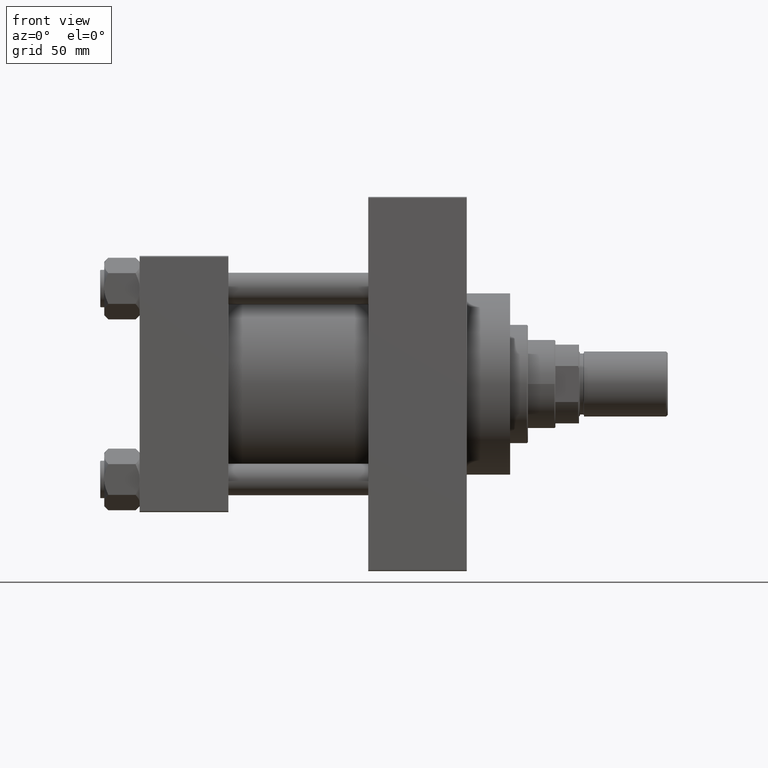
[diagram: clean part render]
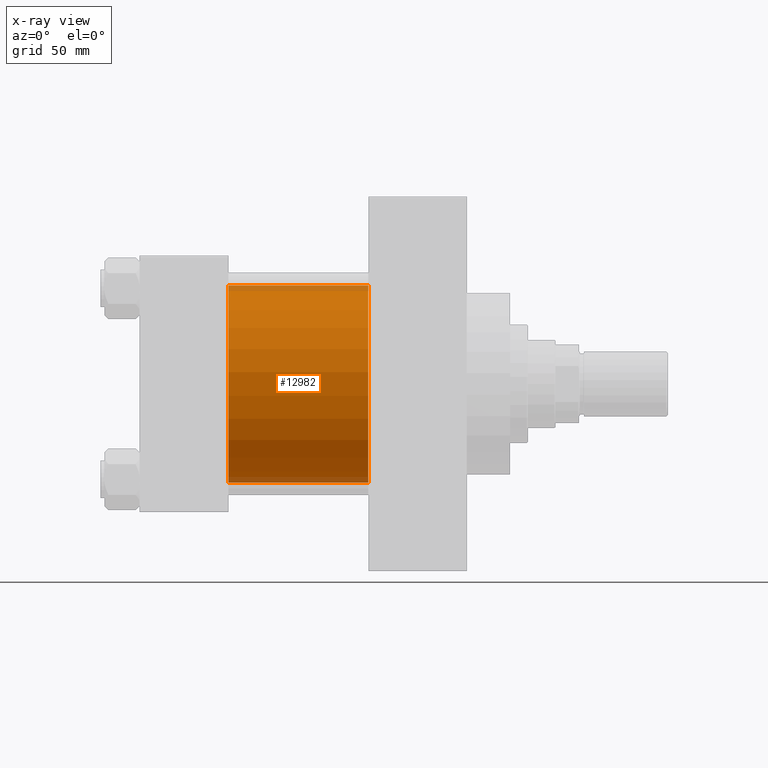
[diagram: x-ray — body ghosted, one internal face saturated and labeled with its STEP entity id]
A machine part, front view, then the same camera in x-ray: the body is ghosted and one INTERNAL B-rep face — a face not visible from any outside direction — is saturated and labeled: STEP entity #12982.
In plain terms, the highlighted cylindrical surface (partial cylindrical patch) has radius 50 mm, axis along (-1, -0, -0).
Its self-contained STEP definition (entity closure, byte-faithful):
#140 = LINE ( 'NONE', #15642, #11512 ) ;
#3476 = LINE ( 'NONE', #18973, #31178 ) ;
#4275 = DIRECTION ( 'NONE',  ( 1.000000000000000000, 0.000000000000000000, 0.000000000000000000 ) ) ;
#5451 = DIRECTION ( 'NONE',  ( 0.000000000000000000, 0.000000000000000000, 1.000000000000000000 ) ) ;
#6586 = AXIS2_PLACEMENT_3D ( 'NONE', #26909, #4275, #42399 ) ;
#7414 = DIRECTION ( 'NONE',  ( 0.000000000000000000, 0.000000000000000000, -1.000000000000000000 ) ) ;
#7787 = CARTESIAN_POINT ( 'NONE',  ( 115.9999999999999858, 3.521148781771555838E-15, -50.00000000000000000 ) ) ;
#8408 = CARTESIAN_POINT ( 'NONE',  ( 45.00000000000000000, -2.602085213965210642E-15, 0.000000000000000000 ) ) ;
#11325 = CARTESIAN_POINT ( 'NONE',  ( 45.00000000000000000, 3.521148781771555838E-15, -50.00000000000000000 ) ) ;
#11512 = VECTOR ( 'NONE', #31420, 1000.000000000000000 ) ;
#12982 = ADVANCED_FACE ( 'NONE', ( #16391 ), #17136, .F. ) ;
#15642 = CARTESIAN_POINT ( 'NONE',  ( 115.9999999999999858, -2.602085213965210642E-15, 50.00000000000000000 ) ) ;
#15749 = VERTEX_POINT ( 'NONE', #35051 ) ;
#16391 = FACE_OUTER_BOUND ( 'NONE', #37060, .T. ) ;
#17136 = CYLINDRICAL_SURFACE ( 'NONE', #40578, 50.00000000000000000 ) ;
#18480 = EDGE_CURVE ( 'NONE', #19238, #45334, #29314, .T. ) ;
#18973 = CARTESIAN_POINT ( 'NONE',  ( 115.9999999999999858, 3.521148781771555838E-15, -50.00000000000000000 ) ) ;
#19238 = VERTEX_POINT ( 'NONE', #48587 ) ;
#20707 = CARTESIAN_POINT ( 'NONE',  ( 115.9999999999999858, -2.602085213965210642E-15, 0.000000000000000000 ) ) ;
#21121 = EDGE_CURVE ( 'NONE', #19238, #15749, #140, .T. ) ;
#23613 = ORIENTED_EDGE ( 'NONE', *, *, #18480, .T. ) ;
#25972 = EDGE_CURVE ( 'NONE', #15749, #43054, #39318, .T. ) ;
#26307 = ORIENTED_EDGE ( 'NONE', *, *, #21121, .F. ) ;
#26909 = CARTESIAN_POINT ( 'NONE',  ( 115.9999999999999858, -2.602085213965210642E-15, 0.000000000000000000 ) ) ;
#29314 = CIRCLE ( 'NONE', #6586, 50.00000000000000000 ) ;
#31178 = VECTOR ( 'NONE', #48730, 1000.000000000000000 ) ;
#31420 = DIRECTION ( 'NONE',  ( -1.000000000000000000, -0.000000000000000000, -0.000000000000000000 ) ) ;
#33766 = ORIENTED_EDGE ( 'NONE', *, *, #25972, .F. ) ;
#35051 = CARTESIAN_POINT ( 'NONE',  ( 45.00000000000000000, -2.602085213965210642E-15, 50.00000000000000000 ) ) ;
#37060 = EDGE_LOOP ( 'NONE', ( #23613, #37354, #33766, #26307 ) ) ;
#37354 = ORIENTED_EDGE ( 'NONE', *, *, #40265, .T. ) ;
#39318 = CIRCLE ( 'NONE', #46490, 50.00000000000000000 ) ;
#40265 = EDGE_CURVE ( 'NONE', #45334, #43054, #3476, .T. ) ;
#40578 = AXIS2_PLACEMENT_3D ( 'NONE', #20707, #41203, #5451 ) ;
#41203 = DIRECTION ( 'NONE',  ( -1.000000000000000000, -0.000000000000000000, -0.000000000000000000 ) ) ;
#42399 = DIRECTION ( 'NONE',  ( 0.000000000000000000, 0.000000000000000000, -1.000000000000000000 ) ) ;
#43054 = VERTEX_POINT ( 'NONE', #11325 ) ;
#45334 = VERTEX_POINT ( 'NONE', #7787 ) ;
#46490 = AXIS2_PLACEMENT_3D ( 'NONE', #8408, #49845, #7414 ) ;
#48587 = CARTESIAN_POINT ( 'NONE',  ( 115.9999999999999858, -2.602085213965210642E-15, 50.00000000000000000 ) ) ;
#48730 = DIRECTION ( 'NONE',  ( -1.000000000000000000, -0.000000000000000000, -0.000000000000000000 ) ) ;
#49845 = DIRECTION ( 'NONE',  ( 1.000000000000000000, 0.000000000000000000, 0.000000000000000000 ) ) ;